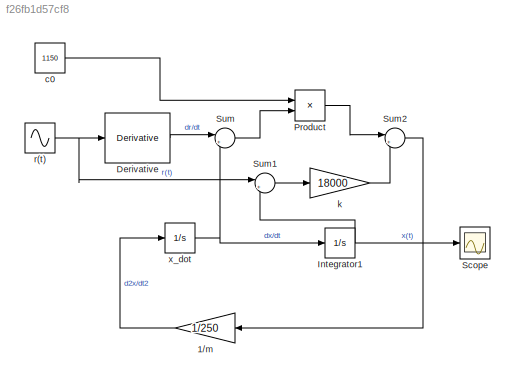
MODEL slx_f26fb1d57cf8
KIND model
CONFIG AbsTol = auto
CONFIG EnableMultiTasking = off
CONFIG FixedStep = auto
CONFIG MaxStep = auto
CONFIG MinStep = auto
CONFIG RelTol = 1e-3
CONFIG SampleTimeConstraint = Unconstrained
CONFIG SolverName = VariableStepAuto
CONFIG StartTime = 0.0
CONFIG StopTime = 10.0
BLOCK [Gain] 1//m
  Gain = 1/250
  NameLocation = top
BLOCK [Derivative] Derivative
BLOCK [Integrator] Integrator1
BLOCK [Product] Product
BLOCK [Scope] Scope
  ActiveDisplayYMaximum = 0.021882842453229665
  ActiveDisplayYMinimum = -0.022050663065569576
  Floating = off
  GraphicalSettings = {"Style":{"BackgroundColor":[0.12941176470588237,0.12941176470588237,0.12941176470588237],"AxesColor":[0.07058823529411765,0.07058823529411765,0.07058823529411765],"LabelsColor":[0.8509803921568627,0.8509803921568627,0.8509803921568627],"PreserveColors":false,"Visible":[true],"LineStyle":["-"],"LineWidth":[1.5],"BarWidth":[0.9],"LineColor":["auto"],"LineFaceAlpha":[1],"LineEdgeAlpha":[1],"Marker":...<+2004ch>
  MultipleDisplayCache = [{"MaxYLimMag":0.022050663065569576,"MaxYLimReal":0.021882842453229665,"MinYLimMag":0,"MinYLimReal":-0.022050663065569576,"PlotAsMagnitudePhase":false,"ShowGrid":true,"ShowLegend":false,"Title":"%<SignalLabel>","YLabel":""}]
  NumInputPorts = 1
  ScopeFrameLocation = window
  WasSavedAsWebScope = on
  WindowPosition = [167.000000,270.000000,881.000000,569.000000,]
BLOCK [Sum] Sum
  Inputs = |+-
BLOCK [Sum] Sum1
  Inputs = |+-
BLOCK [Sum] Sum2
  Inputs = |++
BLOCK [Constant] c0
  Value = 1150
BLOCK [Gain] k
  Gain = 18000
BLOCK [Sin] r(t)
  Amplitude = 0.01
  Frequency = 10
  SampleTime = 0
BLOCK [Integrator] x_dot
LINE 1//m:1 -> x_dot:1
LINE Derivative:1 -> Sum:1
NET Integrator1:1 -> Scope:1, Sum1:2
LINE Product:1 -> Sum2:1
LINE Sum1:1 -> k:1
LINE Sum2:1 -> 1//m:1
LINE Sum:1 -> Product:2
LINE c0:1 -> Product:1
LINE k:1 -> Sum2:2
NET r(t):1 -> Derivative:1, Sum1:1
NET x_dot:1 -> Integrator1:1, Sum:2
note: NET lines group one-source signal fan-out (src -> all destinations, sorted); 1:1 wires keep LINE
